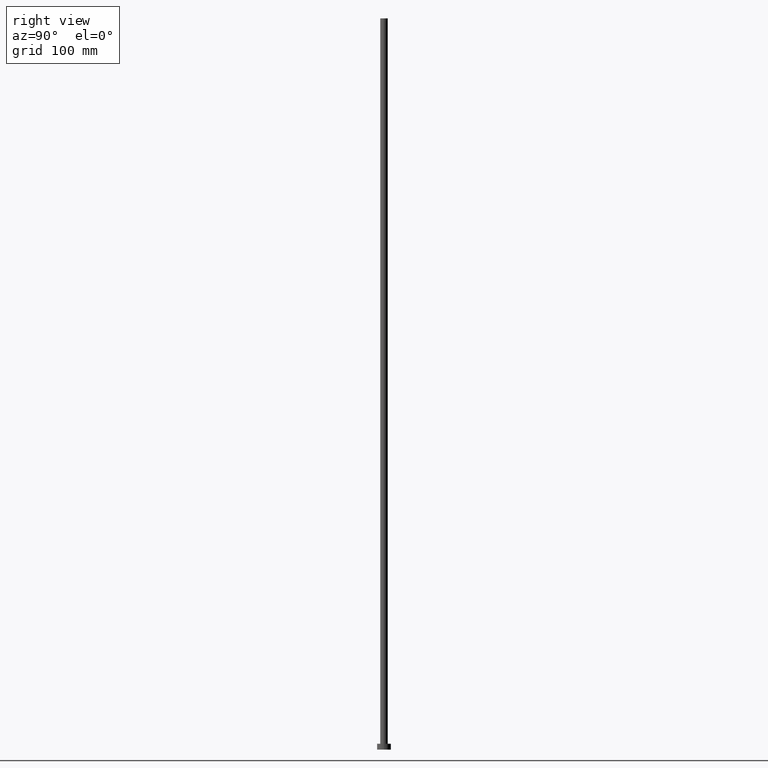
[diagram: clean part render]
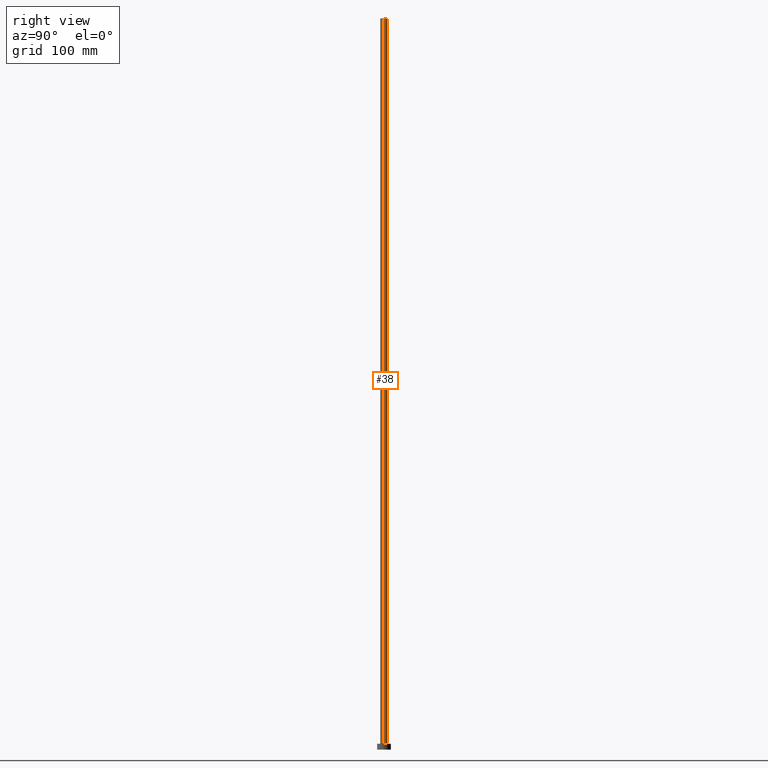
[diagram: same view with one face highlighted and labeled with its STEP entity id]
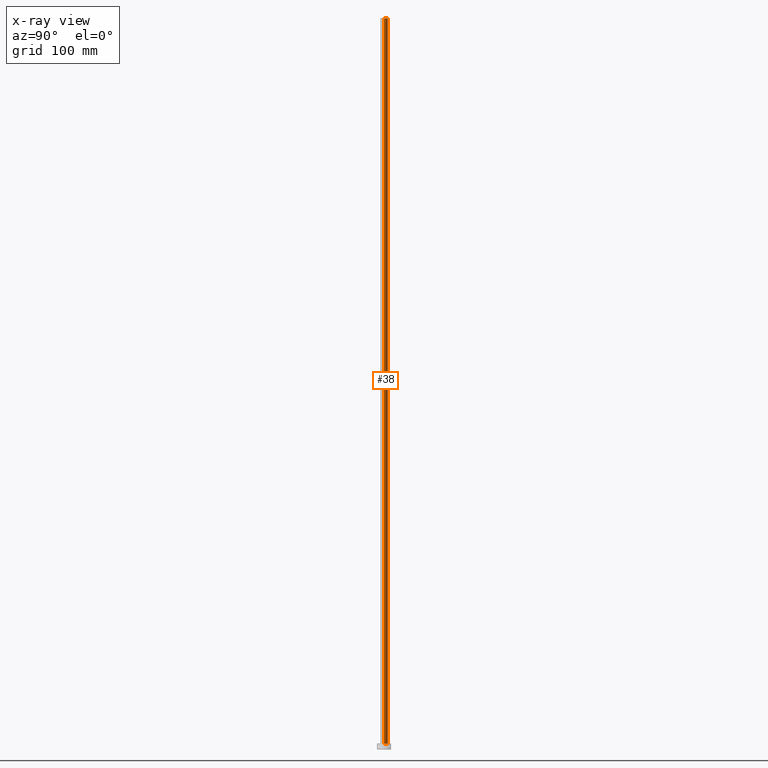
[diagram: x-ray of the same camera — body ghosted, the highlighted face saturated]
A machine part, right view. The second image highlights one B-rep face of the part: STEP entity #38.
The next image is the same camera in x-ray: the body ghosted, the highlighted face saturated — about 0% of this face is hidden behind the body in this view.
In plain terms, the highlighted cylindrical surface (edge-blend (fillet) strip) has radius 3.25 mm, axis along (-0, -0, -1).
Its self-contained STEP definition (entity closure, byte-faithful):
#8 = EDGE_LOOP ( 'NONE', ( #201, #15, #57, #14 ) ) ;
#13 = CARTESIAN_POINT ( 'NONE',  ( 3.250000000000000444, 3.980102097228898231E-16, 630.0000000000000000 ) ) ;
#14 = ORIENTED_EDGE ( 'NONE', *, *, #50, .F. ) ;
#15 = ORIENTED_EDGE ( 'NONE', *, *, #155, .T. ) ;
#27 = CARTESIAN_POINT ( 'NONE',  ( -3.250000000000000444, 0.000000000000000000, 630.0000000000000000 ) ) ;
#34 = CARTESIAN_POINT ( 'NONE',  ( 0.000000000000000000, 0.000000000000000000, 630.0000000000000000 ) ) ;
#35 = DIRECTION ( 'NONE',  ( 1.000000000000000000, 0.000000000000000000, 0.000000000000000000 ) ) ;
#38 = ADVANCED_FACE ( 'NONE', ( #160 ), #179, .T. ) ;
#50 = EDGE_CURVE ( 'NONE', #221, #61, #234, .T. ) ;
#56 = EDGE_CURVE ( 'NONE', #175, #221, #249, .T. ) ;
#57 = ORIENTED_EDGE ( 'NONE', *, *, #115, .T. ) ;
#61 = VERTEX_POINT ( 'NONE', #189 ) ;
#64 = DIRECTION ( 'NONE',  ( -1.000000000000000000, 0.000000000000000000, 0.000000000000000000 ) ) ;
#66 = AXIS2_PLACEMENT_3D ( 'NONE', #34, #126, #64 ) ;
#76 = CARTESIAN_POINT ( 'NONE',  ( 0.000000000000000000, 0.000000000000000000, 5.000000000000000000 ) ) ;
#78 = DIRECTION ( 'NONE',  ( 1.000000000000000000, 0.000000000000000000, 0.000000000000000000 ) ) ;
#86 = CARTESIAN_POINT ( 'NONE',  ( 3.250000000000000444, 3.980102097228898231E-16, 5.000000000000000000 ) ) ;
#90 = AXIS2_PLACEMENT_3D ( 'NONE', #76, #148, #78 ) ;
#91 = DIRECTION ( 'NONE',  ( -0.000000000000000000, -0.000000000000000000, -1.000000000000000000 ) ) ;
#96 = VECTOR ( 'NONE', #91, 1000.000000000000000 ) ;
#101 = CIRCLE ( 'NONE', #90, 3.250000000000000444 ) ;
#111 = CARTESIAN_POINT ( 'NONE',  ( -3.250000000000000444, 0.000000000000000000, 630.0000000000000000 ) ) ;
#115 = EDGE_CURVE ( 'NONE', #133, #61, #101, .T. ) ;
#126 = DIRECTION ( 'NONE',  ( -0.000000000000000000, -0.000000000000000000, -1.000000000000000000 ) ) ;
#133 = VERTEX_POINT ( 'NONE', #86 ) ;
#139 = VECTOR ( 'NONE', #228, 1000.000000000000000 ) ;
#140 = LINE ( 'NONE', #144, #96 ) ;
#144 = CARTESIAN_POINT ( 'NONE',  ( 3.250000000000000444, 3.980102097228898231E-16, 630.0000000000000000 ) ) ;
#148 = DIRECTION ( 'NONE',  ( 0.000000000000000000, 0.000000000000000000, 1.000000000000000000 ) ) ;
#155 = EDGE_CURVE ( 'NONE', #175, #133, #140, .T. ) ;
#160 = FACE_OUTER_BOUND ( 'NONE', #8, .T. ) ;
#175 = VERTEX_POINT ( 'NONE', #13 ) ;
#179 = CYLINDRICAL_SURFACE ( 'NONE', #66, 3.250000000000000444 ) ;
#180 = DIRECTION ( 'NONE',  ( 0.000000000000000000, 0.000000000000000000, 1.000000000000000000 ) ) ;
#189 = CARTESIAN_POINT ( 'NONE',  ( -3.250000000000000444, 0.000000000000000000, 5.000000000000000000 ) ) ;
#201 = ORIENTED_EDGE ( 'NONE', *, *, #56, .F. ) ;
#204 = CARTESIAN_POINT ( 'NONE',  ( 0.000000000000000000, 0.000000000000000000, 630.0000000000000000 ) ) ;
#221 = VERTEX_POINT ( 'NONE', #27 ) ;
#228 = DIRECTION ( 'NONE',  ( -0.000000000000000000, -0.000000000000000000, -1.000000000000000000 ) ) ;
#234 = LINE ( 'NONE', #111, #139 ) ;
#236 = AXIS2_PLACEMENT_3D ( 'NONE', #204, #180, #35 ) ;
#249 = CIRCLE ( 'NONE', #236, 3.250000000000000444 ) ;